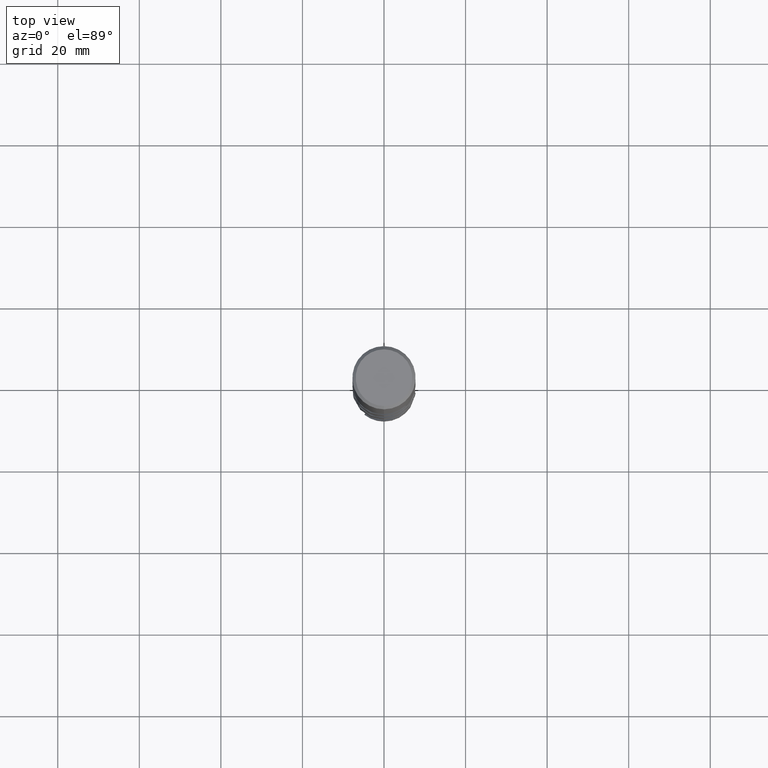
[diagram: clean part render]
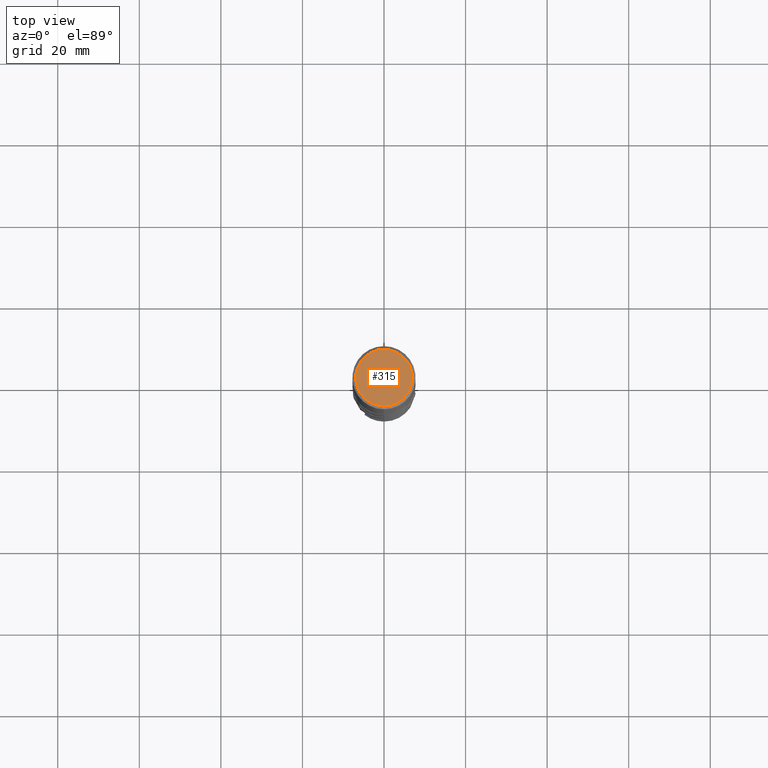
[diagram: same view with one face highlighted and labeled with its STEP entity id]
A machine part, top view. The second image highlights one B-rep face of the part: STEP entity #315.
In plain terms, the highlighted planar face has unit normal (-0, 0, 1).
Its self-contained STEP definition (entity closure, byte-faithful):
#315=ADVANCED_FACE('',(#796),#797,.T.);
#317=VERTEX_POINT('',#799);
#387=EDGE_CURVE('',#317,#407,#877,.T.);
#407=VERTEX_POINT('',#898);
#491=EDGE_CURVE('',#407,#317,#989,.T.);
#796=FACE_OUTER_BOUND('',#2507,.T.);
#797=PLANE('',#2508);
#799=CARTESIAN_POINT('',(8.51101415906552E-016,-6.95,0.0));
#877=CIRCLE('',#3292,6.95);
#898=CARTESIAN_POINT('',(0.0,6.95,0.0));
#989=CIRCLE('',#4908,6.95);
#2507=EDGE_LOOP('',(#7209,#7210));
#2508=AXIS2_PLACEMENT_3D('',#7211,#7212,#7213);
#3292=AXIS2_PLACEMENT_3D('',#7342,#7343,#7344);
#4908=AXIS2_PLACEMENT_3D('',#7443,#7444,#7445);
#7209=ORIENTED_EDGE('',*,*,#491,.F.);
#7210=ORIENTED_EDGE('',*,*,#387,.F.);
#7211=CARTESIAN_POINT('',(0.0,3.475,0.0));
#7212=DIRECTION('',(-0.0,0.0,1.0));
#7213=DIRECTION('',(0.0,-1.0,0.0));
#7342=CARTESIAN_POINT('',(0.0,0.0,0.0));
#7343=DIRECTION('',(0.0,0.0,-1.0));
#7344=DIRECTION('',(0.0,1.0,0.0));
#7443=CARTESIAN_POINT('',(0.0,0.0,0.0));
#7444=DIRECTION('',(0.0,0.0,-1.0));
#7445=DIRECTION('',(0.0,1.0,0.0));